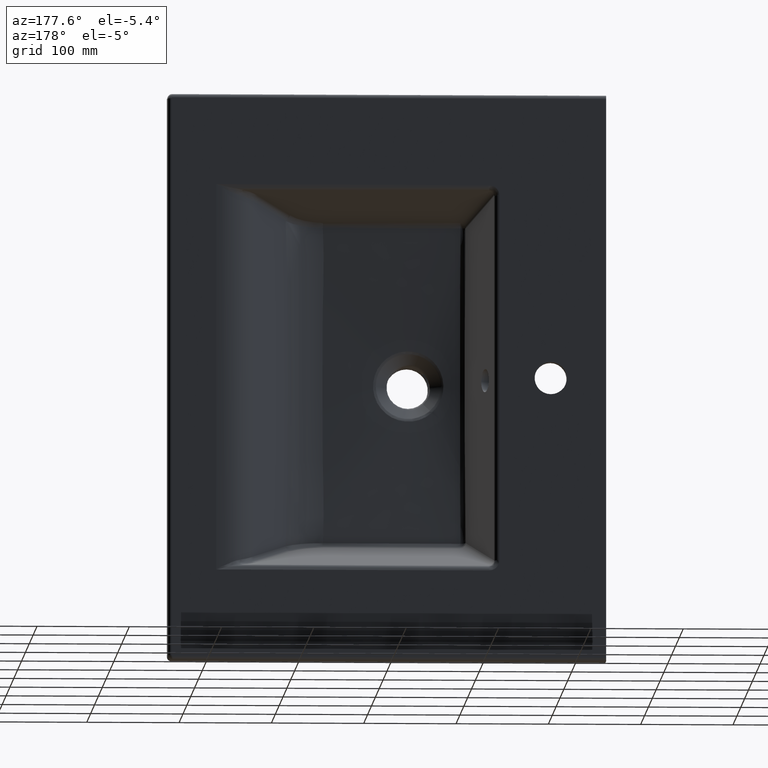
[diagram: clean part render]
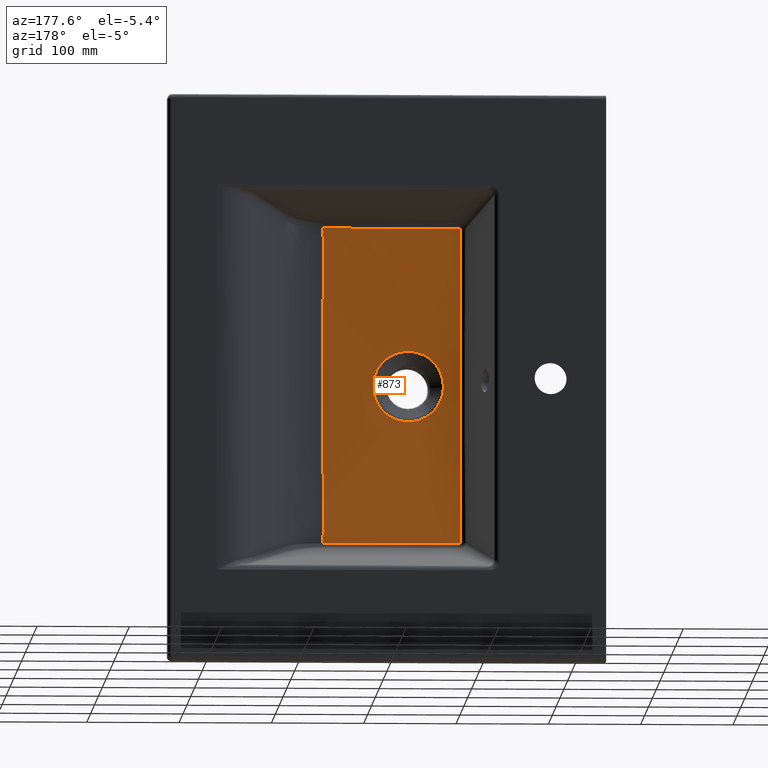
[diagram: same view with one face highlighted and labeled with its STEP entity id]
A machine part, auxiliary view. The second image highlights one B-rep face of the part: STEP entity #873.
In plain terms, the highlighted face is a freeform B-spline surface patch.
Its self-contained STEP definition (entity closure, byte-faithful):
#221=B_SPLINE_SURFACE_WITH_KNOTS('',3,1,((#8918,#8919,#8920),(#8921,#8922,
#8923),(#8924,#8925,#8926),(#8927,#8928,#8929),(#8930,#8931,#8932),(#8933,
#8934,#8935),(#8936,#8937,#8938),(#8939,#8940,#8941),(#8942,#8943,#8944),
(#8945,#8946,#8947),(#8948,#8949,#8950),(#8951,#8952,#8953),(#8954,#8955,
#8956),(#8957,#8958,#8959),(#8960,#8961,#8962),(#8963,#8964,#8965),(#8966,
#8967,#8968),(#8969,#8970,#8971),(#8972,#8973,#8974),(#8975,#8976,#8977),
(#8978,#8979,#8980),(#8981,#8982,#8983),(#8984,#8985,#8986),(#8987,#8988,
#8989),(#8990,#8991,#8992),(#8993,#8994,#8995),(#8996,#8997,#8998),(#8999,
#9000,#9001),(#9002,#9003,#9004),(#9005,#9006,#9007),(#9008,#9009,#9010),
(#9011,#9012,#9013),(#9014,#9015,#9016),(#9017,#9018,#9019),(#9020,#9021,
#9022),(#9023,#9024,#9025),(#9026,#9027,#9028),(#9029,#9030,#9031),(#9032,
#9033,#9034),(#9035,#9036,#9037),(#9038,#9039,#9040),(#9041,#9042,#9043),
(#9044,#9045,#9046),(#9047,#9048,#9049),(#9050,#9051,#9052),(#9053,#9054,
#9055),(#9056,#9057,#9058),(#9059,#9060,#9061),(#9062,#9063,#9064),(#9065,
#9066,#9067),(#9068,#9069,#9070),(#9071,#9072,#9073),(#9074,#9075,#9076),
(#9077,#9078,#9079),(#9080,#9081,#9082),(#9083,#9084,#9085),(#9086,#9087,
#9088),(#9089,#9090,#9091),(#9092,#9093,#9094),(#9095,#9096,#9097),(#9098,
#9099,#9100),(#9101,#9102,#9103),(#9104,#9105,#9106),(#9107,#9108,#9109),
(#9110,#9111,#9112),(#9113,#9114,#9115)),.UNSPECIFIED.,.T.,.F.,.F.,(1,1,
2,1,1,1,1,1,1,1,2,1,1,1,2,1,1,1,1,1,1,1,2,1,1,1,1,1,1,1,2,1,1,1,1,1,1,1,
2,1,1,1,2,1,1,1,1,1,1,1,2,1,1,1,1,1,1,1,2,1,1),(2,1,2),(-0.0636252607940619,
-0.031812630397031,0.,0.00701494371003822,0.0140298874200764,0.0210448311301147,
0.0280597748401529,0.0350747185501911,0.0420896622602294,0.0491046059702675,
0.0561195496803058,0.0894345140460906,0.122749478411875,0.15606444277766,
0.189379407143445,0.196394350853484,0.203409294563522,0.21042423827356,
0.217439181983598,0.224454125693637,0.231469069403675,0.238484013113713,
0.245498956823751,0.277311587220782,0.309124217617813,0.340936848014845,
0.372749478411876,0.404562108808906,0.436374739205938,0.468187369602969,
0.5,0.507014943710038,0.514029887420077,0.521044831130115,0.528059774840153,
0.535074718550191,0.542089662260229,0.549104605970268,0.556119549680306,
0.589434514046091,0.622749478411875,0.65606444277766,0.689379407143445,
0.696394350853483,0.703409294563522,0.71042423827356,0.717439181983598,
0.724454125693636,0.731469069403674,0.738484013113713,0.745498956823751,
0.777311587220782,0.809124217617813,0.840936848014844,0.872749478411875,
0.904562108808907,0.936374739205938,0.968187369602969,1.,1.00701494371004,
1.01402988742008),(0.,0.13017574864537,1.),.UNSPECIFIED.);
#289=FACE_BOUND('',#1506,.T.);
#290=FACE_BOUND('',#1507,.T.);
#371=B_SPLINE_CURVE_WITH_KNOTS('',3,(#8752,#8753,#8754,#8755,#8756,#8757,
#8758,#8759,#8760,#8761,#8762,#8763,#8764,#8765,#8766,#8767,#8768,#8769,
#8770,#8771,#8772,#8773,#8774,#8775,#8776,#8777,#8778,#8779,#8780,#8781,
#8782,#8783,#8784,#8785,#8786,#8787,#8788,#8789,#8790,#8791,#8792,#8793,
#8794,#8795,#8796,#8797,#8798,#8799,#8800,#8801),.UNSPECIFIED.,.T.,.F.,
(2,2,2,2,2,2,2,2,2,2,2,2,2,2,2,2,2,2,2,2,2,2,2,2,2,2,2),(-0.0624999999999998,
0.,0.0625000000000001,0.125,0.15625,0.1875,0.21875,0.25,0.3125,0.375,0.40625,
0.4375,0.46875,0.5,0.53125,0.5625,0.625,0.6875,0.71875,0.75,0.78125,0.8125,
0.875,0.90625,0.9375,1.,1.0625),.UNSPECIFIED.);
#372=B_SPLINE_CURVE_WITH_KNOTS('',3,(#8803,#8804,#8805,#8806,#8807,#8808,
#8809,#8810,#8811,#8812),.UNSPECIFIED.,.F.,.F.,(4,2,2,2,4),(0.,0.25,0.5,
0.75,1.),.UNSPECIFIED.);
#373=B_SPLINE_CURVE_WITH_KNOTS('',3,(#8815,#8816,#8817,#8818,#8819,#8820,
#8821,#8822,#8823,#8824,#8825,#8826),.UNSPECIFIED.,.F.,.F.,(4,2,2,2,2,4),
(0.,0.0625,0.125,0.25,0.5,1.),.UNSPECIFIED.);
#374=B_SPLINE_CURVE_WITH_KNOTS('',3,(#8828,#8829,#8830,#8831,#8832,#8833,
#8834,#8835),.UNSPECIFIED.,.F.,.F.,(4,2,2,4),(0.,0.25,0.5,1.),
 .UNSPECIFIED.);
#375=B_SPLINE_CURVE_WITH_KNOTS('',3,(#8837,#8838,#8839,#8840,#8841,#8842,
#8843),.UNSPECIFIED.,.F.,.F.,(4,3,4),(0.,0.999997926556544,1.),
 .UNSPECIFIED.);
#376=B_SPLINE_CURVE_WITH_KNOTS('',3,(#8845,#8846,#8847,#8848,#8849,#8850,
#8851,#8852,#8853,#8854,#8855,#8856),.UNSPECIFIED.,.F.,.F.,(4,2,2,2,2,4),
(0.,0.0624999999999999,0.125,0.25,0.5,1.),.UNSPECIFIED.);
#377=B_SPLINE_CURVE_WITH_KNOTS('',3,(#8858,#8859,#8860,#8861,#8862,#8863,
#8864,#8865,#8866,#8867,#8868,#8869,#8870,#8871),.UNSPECIFIED.,.F.,.F.,
(4,2,2,2,2,2,4),(0.,0.0312500000000002,0.0625000000000003,0.125,0.25,0.5,
1.),.UNSPECIFIED.);
#378=B_SPLINE_CURVE_WITH_KNOTS('',3,(#8873,#8874,#8875,#8876,#8877,#8878,
#8879,#8880,#8881,#8882,#8883,#8884),.UNSPECIFIED.,.F.,.F.,(4,2,2,2,2,4),
(0.,0.0624999999999998,0.125,0.25,0.5,1.),.UNSPECIFIED.);
#379=B_SPLINE_CURVE_WITH_KNOTS('',3,(#8886,#8887,#8888,#8889,#8890,#8891,
#8892,#8893,#8894,#8895),.UNSPECIFIED.,.F.,.F.,(4,3,3,4),(0.,2.07157395582158E-006,
0.69162829404363,1.),.UNSPECIFIED.);
#380=B_SPLINE_CURVE_WITH_KNOTS('',3,(#8897,#8898,#8899,#8900,#8901,#8902,
#8903,#8904),.UNSPECIFIED.,.F.,.F.,(4,2,2,4),(0.,0.5,0.75,1.),
 .UNSPECIFIED.);
#381=B_SPLINE_CURVE_WITH_KNOTS('',3,(#8906,#8907,#8908,#8909,#8910,#8911,
#8912,#8913,#8914,#8915,#8916,#8917),.UNSPECIFIED.,.F.,.F.,(4,2,2,2,2,4),
(0.,0.5,0.749999999999999,0.874999999999999,0.9375,1.),.UNSPECIFIED.);
#873=ADVANCED_FACE('',(#289,#290),#221,.F.);
#1506=EDGE_LOOP('',(#2252));
#1507=EDGE_LOOP('',(#2253,#2254,#2255,#2256,#2257,#2258,#2259,#2260,#2261,
#2262));
#2252=ORIENTED_EDGE('',*,*,#3884,.T.);
#2253=ORIENTED_EDGE('',*,*,#3885,.T.);
#2254=ORIENTED_EDGE('',*,*,#3886,.T.);
#2255=ORIENTED_EDGE('',*,*,#3887,.T.);
#2256=ORIENTED_EDGE('',*,*,#3888,.T.);
#2257=ORIENTED_EDGE('',*,*,#3889,.T.);
#2258=ORIENTED_EDGE('',*,*,#3890,.T.);
#2259=ORIENTED_EDGE('',*,*,#3891,.T.);
#2260=ORIENTED_EDGE('',*,*,#3892,.T.);
#2261=ORIENTED_EDGE('',*,*,#3893,.T.);
#2262=ORIENTED_EDGE('',*,*,#3894,.T.);
#3479=VERTEX_POINT('',#8802);
#3480=VERTEX_POINT('',#8813);
#3481=VERTEX_POINT('',#8814);
#3482=VERTEX_POINT('',#8827);
#3483=VERTEX_POINT('',#8836);
#3484=VERTEX_POINT('',#8844);
#3485=VERTEX_POINT('',#8857);
#3486=VERTEX_POINT('',#8872);
#3487=VERTEX_POINT('',#8885);
#3488=VERTEX_POINT('',#8896);
#3489=VERTEX_POINT('',#8905);
#3884=EDGE_CURVE('',#3479,#3479,#371,.T.);
#3885=EDGE_CURVE('',#3480,#3481,#372,.T.);
#3886=EDGE_CURVE('',#3481,#3482,#373,.T.);
#3887=EDGE_CURVE('',#3482,#3483,#374,.T.);
#3888=EDGE_CURVE('',#3483,#3484,#375,.T.);
#3889=EDGE_CURVE('',#3484,#3485,#376,.T.);
#3890=EDGE_CURVE('',#3485,#3486,#377,.T.);
#3891=EDGE_CURVE('',#3486,#3487,#378,.T.);
#3892=EDGE_CURVE('',#3487,#3488,#379,.T.);
#3893=EDGE_CURVE('',#3488,#3489,#380,.T.);
#3894=EDGE_CURVE('',#3489,#3480,#381,.T.);
#8752=CARTESIAN_POINT('',(-56.6958858381204,-102.881973361515,-25.1695996129777));
#8753=CARTESIAN_POINT('',(-49.194695829534,-102.91428417369,-31.9399269021677));
#8754=CARTESIAN_POINT('',(-44.8367379368619,-102.91591277727,-34.5017683643152));
#8755=CARTESIAN_POINT('',(-35.3522303705491,-102.912065759523,-37.7980395385449));
#8756=CARTESIAN_POINT('',(-30.3461231045659,-102.913190129161,-38.5037217621802));
#8757=CARTESIAN_POINT('',(-22.797331825474,-102.918327004069,-38.0804028353576));
#8758=CARTESIAN_POINT('',(-20.3331749861481,-102.920606216428,-37.6962894118619));
#8759=CARTESIAN_POINT('',(-15.5057019582928,-102.925595685607,-36.4577766480108));
#8760=CARTESIAN_POINT('',(-13.1171865893804,-102.928871246215,-35.5896587808274));
#8761=CARTESIAN_POINT('',(-8.60613792250357,-102.933347296951,-33.4242945162283));
#8762=CARTESIAN_POINT('',(-6.47967404105842,-102.933432575767,-32.1305777546506));
#8763=CARTESIAN_POINT('',(-2.48436205429988,-102.930275370242,-29.1219011305989));
#8764=CARTESIAN_POINT('',(-0.615039020902852,-102.927520034532,-27.3978918133093));
#8765=CARTESIAN_POINT('',(4.35951921472189,-102.920123132506,-21.8180748648577));
#8766=CARTESIAN_POINT('',(6.9620145378207,-102.914843537112,-17.3971152147552));
#8767=CARTESIAN_POINT('',(10.2531257180684,-102.907327553856,-7.99728582642132));
#8768=CARTESIAN_POINT('',(10.9775745258164,-102.905320007259,-2.92204601290328));
#8769=CARTESIAN_POINT('',(10.5765922633642,-102.906315196023,4.55117176428493));
#8770=CARTESIAN_POINT('',(10.1927490908363,-102.9073493487,7.06736411440542));
#8771=CARTESIAN_POINT('',(8.95962511488858,-102.910298527459,11.9080471277402));
#8772=CARTESIAN_POINT('',(8.1138550351982,-102.912285939854,14.2504659205723));
#8773=CARTESIAN_POINT('',(5.95813476543879,-102.916739879508,18.7774989696624));
#8774=CARTESIAN_POINT('',(4.64842318232641,-102.919251947435,20.946891431568));
#8775=CARTESIAN_POINT('',(1.67336416086226,-102.924204375919,24.9377144654932));
#8776=CARTESIAN_POINT('',(-0.00277794547852524,-102.926694049495,26.7842689791956));
#8777=CARTESIAN_POINT('',(-3.74887616798302,-102.931492770232,30.1665720194994));
#8778=CARTESIAN_POINT('',(-5.76607699296695,-102.93337268623,31.6521606635153));
#8779=CARTESIAN_POINT('',(-10.0667868153067,-102.932476019859,34.2066778625249));
#8780=CARTESIAN_POINT('',(-12.3740108704056,-102.929299840646,35.2808987959098));
#8781=CARTESIAN_POINT('',(-19.4374996601933,-102.92116618596,37.7644601449714));
#8782=CARTESIAN_POINT('',(-24.5089156330028,-102.916420710015,38.4900555853876));
#8783=CARTESIAN_POINT('',(-34.4573003821883,-102.912127422002,37.9677442781704));
#8784=CARTESIAN_POINT('',(-39.4342436941125,-102.915026204796,36.7162924702339));
#8785=CARTESIAN_POINT('',(-46.1841043759167,-102.916079932345,33.5069844394699));
#8786=CARTESIAN_POINT('',(-48.3593718438632,-102.913514506597,32.1922516713242));
#8787=CARTESIAN_POINT('',(-52.3600416913151,-102.901713622242,29.1826156906596));
#8788=CARTESIAN_POINT('',(-54.189940208429,-102.893179877942,27.4953649572589));
#8789=CARTESIAN_POINT('',(-57.5133090767834,-102.874235436584,23.7607400963347));
#8790=CARTESIAN_POINT('',(-59.0066761133333,-102.863121097424,21.6996144840167));
#8791=CARTESIAN_POINT('',(-61.5164534321914,-102.839387029919,17.3926307339764));
#8792=CARTESIAN_POINT('',(-62.5535622405849,-102.826594489632,15.1269007096837));
#8793=CARTESIAN_POINT('',(-65.0058120178928,-102.790639403498,7.99001140060135));
#8794=CARTESIAN_POINT('',(-65.6946752149718,-102.773279249944,2.97424488093989));
#8795=CARTESIAN_POINT('',(-65.3054485363651,-102.781246797359,-4.55853634056646));
#8796=CARTESIAN_POINT('',(-64.9407947540586,-102.789019049687,-7.02625744448887));
#8797=CARTESIAN_POINT('',(-63.7433326720975,-102.809480303455,-11.8756114068497));
#8798=CARTESIAN_POINT('',(-62.8970779307509,-102.822340690836,-14.2762613009439));
#8799=CARTESIAN_POINT('',(-59.7200980218504,-102.859425586096,-21.061249863034));
#8800=CARTESIAN_POINT('',(-56.6958858381204,-102.881973361515,-25.1695996129777));
#8801=CARTESIAN_POINT('',(-49.194695829534,-102.91428417369,-31.9399269021677));
#8802=CARTESIAN_POINT('',(-52.9452908338272,-102.898128767602,-28.5547632575726));
#8803=CARTESIAN_POINT('',(-83.3110054308589,-99.1627648993118,-88.5202248971155));
#8804=CARTESIAN_POINT('',(-83.2900419772536,-99.3561186610101,-73.7669530531405));
#8805=CARTESIAN_POINT('',(-83.2757267055237,-99.5723012893982,-59.0139666012121));
#8806=CARTESIAN_POINT('',(-83.2881064202004,-99.9548537208107,-29.5073298117981));
#8807=CARTESIAN_POINT('',(-83.3203967952468,-100.110983713064,-14.7535265789122));
#8808=CARTESIAN_POINT('',(-83.3203966112605,-100.110982832349,14.7536628339225));
#8809=CARTESIAN_POINT('',(-83.2881063375779,-99.9548528097514,29.5074068816053));
#8810=CARTESIAN_POINT('',(-83.2757267392686,-99.5723006900521,59.0140060304185));
#8811=CARTESIAN_POINT('',(-83.2900419806282,-99.3561186501332,73.7669530529933));
#8812=CARTESIAN_POINT('',(-83.3110054308589,-99.1627648993118,88.5202248971156));
#8813=CARTESIAN_POINT('',(-83.3110054308589,-99.1627648993118,-88.5202248971155));
#8814=CARTESIAN_POINT('',(-83.3110054308589,-99.1627648993118,88.5202248971156));
#8815=CARTESIAN_POINT('',(-83.3110054308589,-99.1627648993118,88.5202248971156));
#8816=CARTESIAN_POINT('',(-83.3091907717745,-99.1538884444656,90.2474989672242));
#8817=CARTESIAN_POINT('',(-83.2554851333548,-99.1152627158856,91.9735253735622));
#8818=CARTESIAN_POINT('',(-83.2254260709496,-99.0480201179993,95.4266526403856));
#8819=CARTESIAN_POINT('',(-83.2168275871621,-99.0090183655168,97.1531647112862));
#8820=CARTESIAN_POINT('',(-83.2021648417471,-98.8815014993084,102.332587945093));
#8821=CARTESIAN_POINT('',(-83.2064552794835,-98.7826808804195,105.78519894059));
#8822=CARTESIAN_POINT('',(-83.2386283763492,-98.4640353648447,116.141841565838));
#8823=CARTESIAN_POINT('',(-83.2847419814248,-98.2223348364731,123.045099106874));
#8824=CARTESIAN_POINT('',(-83.4478356217397,-97.4593313643853,143.753399975548));
#8825=CARTESIAN_POINT('',(-83.5918068437502,-96.8991478705376,157.556951722046));
#8826=CARTESIAN_POINT('',(-83.7455535551465,-96.3208638293778,171.359521830076));
#8827=CARTESIAN_POINT('',(-83.7455535551467,-96.3208638293778,171.359521830076));
#8828=CARTESIAN_POINT('',(-83.7455535551467,-96.3208638293778,171.359521830076));
#8829=CARTESIAN_POINT('',(-71.3243018160535,-96.604639458181,171.29472779117));
#8830=CARTESIAN_POINT('',(-58.900751736477,-96.5747816602515,171.312056549036));
#8831=CARTESIAN_POINT('',(-34.0542167430794,-96.5892775527199,171.310720723604));
#8832=CARTESIAN_POINT('',(-21.6309482900955,-96.594535282089,171.310179700044));
#8833=CARTESIAN_POINT('',(15.6388599524902,-96.6027926492581,171.308990161642));
#8834=CARTESIAN_POINT('',(40.4853969380625,-96.5977469720917,171.308766454259));
#8835=CARTESIAN_POINT('',(65.3319324012526,-96.5841270297268,171.309346965457));
#8836=CARTESIAN_POINT('',(65.3319324012527,-96.5841270297269,171.309346965457));
#8837=CARTESIAN_POINT('',(65.3319324012527,-96.5841270297269,171.309346965457));
#8838=CARTESIAN_POINT('',(65.0289980841975,-97.0339507395937,161.67883457981));
#8839=CARTESIAN_POINT('',(64.7324082853977,-97.4806106981276,152.04796457254));
#8840=CARTESIAN_POINT('',(64.4485123279376,-97.9197864927328,142.416380741867));
#8841=CARTESIAN_POINT('',(64.4485117392942,-97.9197874033408,142.416360771282));
#8842=CARTESIAN_POINT('',(64.4485111506509,-97.9197883139488,142.416340800696));
#8843=CARTESIAN_POINT('',(64.4485105620076,-97.9197892245568,142.41632083011));
#8844=CARTESIAN_POINT('',(64.4485105620076,-97.9197892245568,142.41632083011));
#8845=CARTESIAN_POINT('',(64.4485105620076,-97.9197892245568,142.41632083011));
#8846=CARTESIAN_POINT('',(64.4288207729066,-97.9523961644947,141.141020465124));
#8847=CARTESIAN_POINT('',(64.4791346074762,-98.0341779825784,139.86883391233));
#8848=CARTESIAN_POINT('',(64.5043748000357,-98.1440606174551,137.321118609063));
#8849=CARTESIAN_POINT('',(64.5155869145624,-98.197546142019,136.047189996671));
#8850=CARTESIAN_POINT('',(64.5473144801923,-98.3538826126038,132.225221017537));
#8851=CARTESIAN_POINT('',(64.564970042664,-98.4526217599942,129.676989741939));
#8852=CARTESIAN_POINT('',(64.6158955539122,-98.7337129382029,122.031665854554));
#8853=CARTESIAN_POINT('',(64.6498915785361,-98.9010349846495,116.934105192036));
#8854=CARTESIAN_POINT('',(64.7916964971852,-99.3407784360682,101.64017415371));
#8855=CARTESIAN_POINT('',(64.9043813553386,-99.5652397032994,91.4389684594104));
#8856=CARTESIAN_POINT('',(65.3658411735244,-99.6180824045792,81.2487584377706));
#8857=CARTESIAN_POINT('',(65.3658411735244,-99.6180824045792,81.2487584377706));
#8858=CARTESIAN_POINT('',(65.3658411735244,-99.6180824045792,81.2487584377706));
#8859=CARTESIAN_POINT('',(65.4154787234854,-99.6637101612053,79.5564301609883));
#8860=CARTESIAN_POINT('',(65.3734799994182,-99.6419411840572,77.8634236220215));
#8861=CARTESIAN_POINT('',(65.3818111477035,-99.6655319082054,74.4780891412717));
#8862=CARTESIAN_POINT('',(65.3862059222875,-99.6772276021739,72.7854219411596));
#8863=CARTESIAN_POINT('',(65.4000435946108,-99.7119120708381,67.7074196892741));
#8864=CARTESIAN_POINT('',(65.4101493768922,-99.7345018691219,64.32208403796));
#8865=CARTESIAN_POINT('',(65.4425374865264,-99.7997117951763,54.1660667196675));
#8866=CARTESIAN_POINT('',(65.4667227171801,-99.8398036516893,47.3953632297078));
#8867=CARTESIAN_POINT('',(65.5367440281407,-99.941430702814,27.0832155354537));
#8868=CARTESIAN_POINT('',(65.5762723502295,-99.9826034075423,13.5417541664702));
#8869=CARTESIAN_POINT('',(65.5762735417131,-99.9826047284378,-27.082823214942));
#8870=CARTESIAN_POINT('',(65.4250789499783,-99.8095021109223,-54.1660914410466));
#8871=CARTESIAN_POINT('',(65.3658411735244,-99.6180824045791,-81.2487584377706));
#8872=CARTESIAN_POINT('',(65.3658411735244,-99.6180824045791,-81.2487584377706));
#8873=CARTESIAN_POINT('',(65.3658411735244,-99.6180824045791,-81.2487584377706));
#8874=CARTESIAN_POINT('',(65.3435591377353,-99.6365878778769,-82.5241545322057));
#8875=CARTESIAN_POINT('',(65.2573381980214,-99.6018007039524,-83.7970452762873));
#8876=CARTESIAN_POINT('',(65.1652460052005,-99.5773548221406,-86.3455569968057));
#8877=CARTESIAN_POINT('',(65.1241571014975,-99.5625641631477,-87.6198789506266));
#8878=CARTESIAN_POINT('',(65.0131376243545,-99.5115920463531,-91.443003483612));
#8879=CARTESIAN_POINT('',(64.9540918084564,-99.4688846882231,-93.9919351892674));
#8880=CARTESIAN_POINT('',(64.8065708389655,-99.320271018447,-101.639032360923));
#8881=CARTESIAN_POINT('',(64.7444343133275,-99.1942134866365,-106.737553413729));
#8882=CARTESIAN_POINT('',(64.6026210015444,-98.7544523614444,-122.032202008254));
#8883=CARTESIAN_POINT('',(64.5814160041176,-98.3836864179989,-132.227859015499));
#8884=CARTESIAN_POINT('',(64.4485105620073,-97.9197892245568,-142.41632083011));
#8885=CARTESIAN_POINT('',(64.4485105620073,-97.9197892245568,-142.41632083011));
#8886=CARTESIAN_POINT('',(64.4485105620073,-97.9197892245568,-142.41632083011));
#8887=CARTESIAN_POINT('',(64.4485106046476,-97.9197879089882,-142.416340768679));
#8888=CARTESIAN_POINT('',(64.4485117382332,-97.9197874049829,-142.416360735271));
#8889=CARTESIAN_POINT('',(64.4485123263459,-97.9197864951958,-142.416380687852));
#8890=CARTESIAN_POINT('',(64.6448626313749,-97.6160403551921,-149.077850757062));
#8891=CARTESIAN_POINT('',(64.8473673155493,-97.3086412098315,-155.738974087425));
#8892=CARTESIAN_POINT('',(65.0537232972401,-96.9991983102509,-162.399879502124));
#8893=CARTESIAN_POINT('',(65.145730163878,-96.8612286165183,-165.369742702389));
#8894=CARTESIAN_POINT('',(65.2385158082239,-96.7228402625086,-168.339562409738));
#8895=CARTESIAN_POINT('',(65.3319324012525,-96.5841270297268,-171.309346965456));
#8896=CARTESIAN_POINT('',(65.3319324012525,-96.5841270297268,-171.309346965456));
#8897=CARTESIAN_POINT('',(65.3319324012526,-96.5841270297269,-171.309346965457));
#8898=CARTESIAN_POINT('',(40.4853969755869,-96.5977469720712,-171.30876645426));
#8899=CARTESIAN_POINT('',(15.638857332698,-96.6027926490788,-171.308990161702));
#8900=CARTESIAN_POINT('',(-21.6309492629672,-96.5945352816728,-171.310179700087));
#8901=CARTESIAN_POINT('',(-34.0542174058403,-96.5892775523907,-171.310720723636));
#8902=CARTESIAN_POINT('',(-58.9007521724066,-96.5747816599397,-171.312056549064));
#8903=CARTESIAN_POINT('',(-71.3243021726765,-96.6046394500335,-171.29472779303));
#8904=CARTESIAN_POINT('',(-83.7455535551467,-96.3208638293779,-171.359521830076));
#8905=CARTESIAN_POINT('',(-83.7455535551467,-96.3208638293779,-171.359521830076));
#8906=CARTESIAN_POINT('',(-83.7455535551467,-96.3208638293779,-171.359521830076));
#8907=CARTESIAN_POINT('',(-83.5918071917295,-96.8991465616917,-157.55698296178));
#8908=CARTESIAN_POINT('',(-83.4478386162254,-97.4593194708711,-143.753696174615));
#8909=CARTESIAN_POINT('',(-83.2847447132165,-98.2223209985142,-123.045487974042));
#8910=CARTESIAN_POINT('',(-83.2386302333304,-98.4640229698247,-116.14221901697));
#8911=CARTESIAN_POINT('',(-83.2064555567412,-98.7826751362487,-105.785398343794));
#8912=CARTESIAN_POINT('',(-83.2021648972675,-98.8814994932801,-102.33265948966));
#8913=CARTESIAN_POINT('',(-83.2168271855853,-99.0090161175314,-97.1532609864626));
#8914=CARTESIAN_POINT('',(-83.2254254431587,-99.0480180530109,-95.4267494700178));
#8915=CARTESIAN_POINT('',(-83.2554842857729,-99.1152614804091,-91.9735980331475));
#8916=CARTESIAN_POINT('',(-83.3091908231033,-99.1538886866434,-90.2474511539173));
#8917=CARTESIAN_POINT('',(-83.3110054308589,-99.1627648993118,-88.5202248971155));
#8918=CARTESIAN_POINT('',(-127.053882555959,-93.8027397631865,-159.120085158968));
#8919=CARTESIAN_POINT('',(-117.5,-95.,-141.735722125314));
#8920=CARTESIAN_POINT('',(-53.6616981024186,-103.,-25.5747572883126));
#8921=CARTESIAN_POINT('',(-127.394740143705,-93.8027397631865,-177.428050718175));
#8922=CARTESIAN_POINT('',(-117.5,-95.,-157.92488112044));
#8923=CARTESIAN_POINT('',(-51.3841141502205,-103.,-27.6062152327732));
#8924=CARTESIAN_POINT('',(-126.923734659806,-93.8027397631864,-184.240002953325));
#8925=CARTESIAN_POINT('',(-116.985376035969,-95.,-163.93947217271));
#8926=CARTESIAN_POINT('',(-50.5780348865589,-103.,-28.2929007329389));
#8927=CARTESIAN_POINT('',(-124.174382512542,-93.8027397631865,-194.649976271239));
#8928=CARTESIAN_POINT('',(-114.440177252582,-95.,-173.114224439004));
#8929=CARTESIAN_POINT('',(-49.3969730391569,-103.,-29.2140017802965));
#8930=CARTESIAN_POINT('',(-119.239765517602,-93.8027397631863,-204.717362276203));
#8931=CARTESIAN_POINT('',(-109.994887313965,-95.,-181.981121160266));
#8932=CARTESIAN_POINT('',(-48.2213285211511,-103.,-30.0593222608046));
#8933=CARTESIAN_POINT('',(-112.172031490767,-93.8027397631867,-213.824055218187));
#8934=CARTESIAN_POINT('',(-103.693176016244,-95.,-190.004117257819));
#8935=CARTESIAN_POINT('',(-47.0381216592138,-103.,-30.84114013422));
#8936=CARTESIAN_POINT('',(-103.266506095647,-93.8027397631862,-221.361341892199));
#8937=CARTESIAN_POINT('',(-95.7902351449844,-95.,-196.655337516447));
#8938=CARTESIAN_POINT('',(-45.834372780017,-103.,-31.5717333602993));
#8939=CARTESIAN_POINT('',(-93.043307466135,-93.8027397631867,-226.856301622935));
#8940=CARTESIAN_POINT('',(-86.7366447474075,-95.,-201.524423285883));
#8941=CARTESIAN_POINT('',(-44.5960138315247,-103.,-32.2587778855248));
#8942=CARTESIAN_POINT('',(-82.1505202200255,-93.8027397631865,-230.067103357224));
#8943=CARTESIAN_POINT('',(-77.0942932217963,-95.,-204.402023273426));
#8944=CARTESIAN_POINT('',(-43.3089767617005,-103.,-32.909949656379));
#8945=CARTESIAN_POINT('',(-74.8764097964421,-93.8027397631865,-230.692717112679));
#8946=CARTESIAN_POINT('',(-70.6490399278132,-95.,-205.));
#8947=CARTESIAN_POINT('',(-42.4020824918586,-103.,-33.3232579004878));
#8948=CARTESIAN_POINT('',(-54.4668804900225,-93.8027397631865,-230.518718125122));
#8949=CARTESIAN_POINT('',(-52.5447618682934,-95.,-205.));
#8950=CARTESIAN_POINT('',(-39.701314386267,-103.,-34.4859056337486));
#8951=CARTESIAN_POINT('',(-21.2218815656426,-93.8027397631865,-230.294481514429));
#8952=CARTESIAN_POINT('',(-23.0136852315251,-95.,-205.));
#8953=CARTESIAN_POINT('',(-34.9863782904802,-103.,-35.984237266579));
#8954=CARTESIAN_POINT('',(27.9709758032813,-93.8027397631865,-230.178652522596));
#8955=CARTESIAN_POINT('',(20.75,-95.,-205.));
#8956=CARTESIAN_POINT('',(-27.5,-103.,-36.7581976021619));
#8957=CARTESIAN_POINT('',(77.1638331722055,-93.8027397631865,-230.294481514429));
#8958=CARTESIAN_POINT('',(64.5136852315252,-95.,-205.));
#8959=CARTESIAN_POINT('',(-20.0136217095199,-103.,-35.984237266579));
#8960=CARTESIAN_POINT('',(110.408832096585,-93.8027397631865,-230.518718125122));
#8961=CARTESIAN_POINT('',(94.0447618682934,-95.,-205.));
#8962=CARTESIAN_POINT('',(-15.2986856137332,-103.,-34.4859056337486));
#8963=CARTESIAN_POINT('',(130.818361403005,-93.8027397631865,-230.692717112679));
#8964=CARTESIAN_POINT('',(112.149039927813,-95.,-205.));
#8965=CARTESIAN_POINT('',(-12.5979175081415,-103.,-33.3232579004878));
#8966=CARTESIAN_POINT('',(138.092471826588,-93.8027397631865,-230.067103357223));
#8967=CARTESIAN_POINT('',(118.594293221796,-95.,-204.402023273426));
#8968=CARTESIAN_POINT('',(-11.6910232382997,-103.,-32.909949656379));
#8969=CARTESIAN_POINT('',(148.985259072698,-93.8027397631866,-226.856301622937));
#8970=CARTESIAN_POINT('',(128.236644747407,-95.,-201.524423285884));
#8971=CARTESIAN_POINT('',(-10.4039861684755,-103.,-32.2587778855248));
#8972=CARTESIAN_POINT('',(159.20845770221,-93.8027397631863,-221.361341892197));
#8973=CARTESIAN_POINT('',(137.290235144984,-95.,-196.655337516446));
#8974=CARTESIAN_POINT('',(-9.16562721998315,-103.,-31.5717333602992));
#8975=CARTESIAN_POINT('',(168.11398309733,-93.8027397631867,-213.824055218188));
#8976=CARTESIAN_POINT('',(145.193176016244,-95.,-190.004117257821));
#8977=CARTESIAN_POINT('',(-7.9618783407864,-103.,-30.8411401342199));
#8978=CARTESIAN_POINT('',(175.181717124164,-93.8027397631866,-204.717362276202));
#8979=CARTESIAN_POINT('',(151.494887313964,-95.,-181.981121160264));
#8980=CARTESIAN_POINT('',(-6.77867147884902,-103.,-30.0593222608045));
#8981=CARTESIAN_POINT('',(180.116334119105,-93.8027397631865,-194.64997627124));
#8982=CARTESIAN_POINT('',(155.940177252583,-95.,-173.114224439005));
#8983=CARTESIAN_POINT('',(-5.60302696084323,-103.,-29.2140017802964));
#8984=CARTESIAN_POINT('',(182.865686266368,-93.8027397631866,-184.240002953325));
#8985=CARTESIAN_POINT('',(158.485376035969,-95.,-163.93947217271));
#8986=CARTESIAN_POINT('',(-4.42196511344126,-103.,-28.2929007329389));
#8987=CARTESIAN_POINT('',(183.336691750268,-93.8027397631865,-177.428050718175));
#8988=CARTESIAN_POINT('',(159.,-95.,-157.92488112044));
#8989=CARTESIAN_POINT('',(-3.61588584977969,-103.,-27.6062152327731));
#8990=CARTESIAN_POINT('',(182.995834162522,-93.8027397631865,-159.120085158968));
#8991=CARTESIAN_POINT('',(159.,-95.,-141.735722125314));
#8992=CARTESIAN_POINT('',(-1.33830189758157,-103.,-25.5747572883126));
#8993=CARTESIAN_POINT('',(182.483657155719,-93.8027397631865,-129.493001342167));
#8994=CARTESIAN_POINT('',(159.,-95.,-115.477974785268));
#8995=CARTESIAN_POINT('',(2.08402511907751,-103.,-21.8306548395225));
#8996=CARTESIAN_POINT('',(181.898475210888,-93.8027397631866,-85.8846847631726));
#8997=CARTESIAN_POINT('',(159.,-95.,-76.6804726895578));
#8998=CARTESIAN_POINT('',(5.99416546676967,-103.,-15.1786418220307));
#8999=CARTESIAN_POINT('',(181.531861933477,-93.8027397631864,-42.8081188415157));
#9000=CARTESIAN_POINT('',(159.,-95.,-38.2487831945926));
#9001=CARTESIAN_POINT('',(8.44384693877003,-103.,-7.78365618723272));
#9002=CARTESIAN_POINT('',(181.406978990625,-93.8027397631864,2.02596393434094E-013));
#9003=CARTESIAN_POINT('',(159.,-95.,1.75207071073657E-013));
#9004=CARTESIAN_POINT('',(9.27830507251287,-103.,-7.80625564189563E-015));
#9005=CARTESIAN_POINT('',(181.531861933477,-93.8027397631865,42.808118841516));
#9006=CARTESIAN_POINT('',(159.,-95.,38.2487831945928));
#9007=CARTESIAN_POINT('',(8.44384693877006,-103.,7.78365618723275));
#9008=CARTESIAN_POINT('',(181.898475210888,-93.8027397631865,85.8846847631728));
#9009=CARTESIAN_POINT('',(159.,-95.,76.6804726895579));
#9010=CARTESIAN_POINT('',(5.99416546676963,-103.,15.1786418220306));
#9011=CARTESIAN_POINT('',(182.483657155719,-93.8027397631866,129.493001342167));
#9012=CARTESIAN_POINT('',(159.,-95.,115.477974785268));
#9013=CARTESIAN_POINT('',(2.08402511907752,-103.,21.8306548395225));
#9014=CARTESIAN_POINT('',(182.995834162522,-93.8027397631865,159.120085158968));
#9015=CARTESIAN_POINT('',(159.,-95.,141.735722125314));
#9016=CARTESIAN_POINT('',(-1.33830189758158,-103.,25.5747572883126));
#9017=CARTESIAN_POINT('',(183.336691750268,-93.8027397631865,177.428050718175));
#9018=CARTESIAN_POINT('',(159.,-95.,157.92488112044));
#9019=CARTESIAN_POINT('',(-3.6158858497797,-103.,27.6062152327732));
#9020=CARTESIAN_POINT('',(182.865686266369,-93.8027397631866,184.240002953326));
#9021=CARTESIAN_POINT('',(158.485376035969,-95.,163.939472172711));
#9022=CARTESIAN_POINT('',(-4.42196511344127,-103.,28.2929007329389));
#9023=CARTESIAN_POINT('',(180.116334119104,-93.8027397631863,194.649976271239));
#9024=CARTESIAN_POINT('',(155.940177252582,-95.,173.114224439004));
#9025=CARTESIAN_POINT('',(-5.60302696084324,-103.,29.2140017802965));
#9026=CARTESIAN_POINT('',(175.181717124164,-93.8027397631868,204.717362276202));
#9027=CARTESIAN_POINT('',(151.494887313965,-95.,181.981121160265));
#9028=CARTESIAN_POINT('',(-6.77867147884903,-103.,30.0593222608045));
#9029=CARTESIAN_POINT('',(168.11398309733,-93.8027397631862,213.824055218188));
#9030=CARTESIAN_POINT('',(145.193176016244,-95.,190.00411725782));
#9031=CARTESIAN_POINT('',(-7.96187834078642,-103.,30.8411401342199));
#9032=CARTESIAN_POINT('',(159.20845770221,-93.8027397631868,221.361341892198));
#9033=CARTESIAN_POINT('',(137.290235144984,-95.,196.655337516447));
#9034=CARTESIAN_POINT('',(-9.16562721998316,-103.,31.5717333602992));
#9035=CARTESIAN_POINT('',(148.985259072697,-93.8027397631862,226.856301622935));
#9036=CARTESIAN_POINT('',(128.236644747407,-95.,201.524423285883));
#9037=CARTESIAN_POINT('',(-10.4039861684755,-103.,32.2587778855249));
#9038=CARTESIAN_POINT('',(138.092471826588,-93.8027397631867,230.067103357224));
#9039=CARTESIAN_POINT('',(118.594293221796,-95.,204.402023273426));
#9040=CARTESIAN_POINT('',(-11.6910232382997,-103.,32.909949656379));
#9041=CARTESIAN_POINT('',(130.818361403005,-93.8027397631865,230.692717112679));
#9042=CARTESIAN_POINT('',(112.149039927813,-95.,205.));
#9043=CARTESIAN_POINT('',(-12.5979175081415,-103.,33.3232579004878));
#9044=CARTESIAN_POINT('',(110.408832096585,-93.8027397631865,230.518718125122));
#9045=CARTESIAN_POINT('',(94.0447618682934,-95.,205.));
#9046=CARTESIAN_POINT('',(-15.2986856137332,-103.,34.4859056337486));
#9047=CARTESIAN_POINT('',(77.1638331722054,-93.8027397631865,230.294481514429));
#9048=CARTESIAN_POINT('',(64.5136852315251,-95.,205.));
#9049=CARTESIAN_POINT('',(-20.01362170952,-103.,35.984237266579));
#9050=CARTESIAN_POINT('',(27.9709758032813,-93.8027397631865,230.178652522596));
#9051=CARTESIAN_POINT('',(20.75,-95.,205.));
#9052=CARTESIAN_POINT('',(-27.5,-103.,36.7581976021619));
#9053=CARTESIAN_POINT('',(-21.2218815656427,-93.8027397631865,230.294481514429));
#9054=CARTESIAN_POINT('',(-23.0136852315252,-95.,205.));
#9055=CARTESIAN_POINT('',(-34.9863782904802,-103.,35.984237266579));
#9056=CARTESIAN_POINT('',(-54.4668804900225,-93.8027397631865,230.518718125122));
#9057=CARTESIAN_POINT('',(-52.5447618682935,-95.,205.));
#9058=CARTESIAN_POINT('',(-39.701314386267,-103.,34.4859056337486));
#9059=CARTESIAN_POINT('',(-74.8764097964421,-93.8027397631865,230.692717112679));
#9060=CARTESIAN_POINT('',(-70.6490399278132,-95.,205.));
#9061=CARTESIAN_POINT('',(-42.4020824918587,-103.,33.3232579004878));
#9062=CARTESIAN_POINT('',(-82.1505202200256,-93.8027397631865,230.067103357223));
#9063=CARTESIAN_POINT('',(-77.0942932217965,-95.,204.402023273426));
#9064=CARTESIAN_POINT('',(-43.3089767617005,-103.,32.909949656379));
#9065=CARTESIAN_POINT('',(-93.0433074661349,-93.8027397631866,226.856301622936));
#9066=CARTESIAN_POINT('',(-86.7366447474074,-95.,201.524423285884));
#9067=CARTESIAN_POINT('',(-44.5960138315247,-103.,32.2587778855248));
#9068=CARTESIAN_POINT('',(-103.266506095647,-93.8027397631863,221.361341892197));
#9069=CARTESIAN_POINT('',(-95.7902351449844,-95.,196.655337516446));
#9070=CARTESIAN_POINT('',(-45.834372780017,-103.,31.5717333602992));
#9071=CARTESIAN_POINT('',(-112.172031490767,-93.8027397631867,213.824055218189));
#9072=CARTESIAN_POINT('',(-103.693176016244,-95.,190.004117257821));
#9073=CARTESIAN_POINT('',(-47.0381216592138,-103.,30.8411401342199));
#9074=CARTESIAN_POINT('',(-119.239765517602,-93.8027397631866,204.717362276201));
#9075=CARTESIAN_POINT('',(-109.994887313965,-95.,181.981121160263));
#9076=CARTESIAN_POINT('',(-48.2213285211511,-103.,30.0593222608045));
#9077=CARTESIAN_POINT('',(-124.174382512542,-93.8027397631864,194.649976271241));
#9078=CARTESIAN_POINT('',(-114.440177252583,-95.,173.114224439006));
#9079=CARTESIAN_POINT('',(-49.3969730391569,-103.,29.2140017802964));
#9080=CARTESIAN_POINT('',(-126.923734659806,-93.8027397631865,184.240002953325));
#9081=CARTESIAN_POINT('',(-116.985376035969,-95.,163.93947217271));
#9082=CARTESIAN_POINT('',(-50.5780348865589,-103.,28.2929007329389));
#9083=CARTESIAN_POINT('',(-127.394740143705,-93.8027397631865,177.428050718175));
#9084=CARTESIAN_POINT('',(-117.5,-95.,157.92488112044));
#9085=CARTESIAN_POINT('',(-51.3841141502205,-103.,27.6062152327731));
#9086=CARTESIAN_POINT('',(-127.053882555959,-93.8027397631865,159.120085158968));
#9087=CARTESIAN_POINT('',(-117.5,-95.,141.735722125314));
#9088=CARTESIAN_POINT('',(-53.6616981024186,-103.,25.5747572883126));
#9089=CARTESIAN_POINT('',(-126.541705549156,-93.8027397631865,129.493001342167));
#9090=CARTESIAN_POINT('',(-117.5,-95.,115.477974785268));
#9091=CARTESIAN_POINT('',(-57.0840251190776,-103.,21.8306548395224));
#9092=CARTESIAN_POINT('',(-125.956523604325,-93.8027397631865,85.8846847631728));
#9093=CARTESIAN_POINT('',(-117.5,-95.,76.680472689558));
#9094=CARTESIAN_POINT('',(-60.9941654667699,-103.,15.1786418220307));
#9095=CARTESIAN_POINT('',(-125.589910326914,-93.8027397631865,42.8081188415159));
#9096=CARTESIAN_POINT('',(-117.5,-95.,38.2487831945928));
#9097=CARTESIAN_POINT('',(-63.4438469387701,-103.,7.78365618723268));
#9098=CARTESIAN_POINT('',(-125.465027384062,-93.8027397631865,2.78381531493493E-014));
#9099=CARTESIAN_POINT('',(-117.5,-95.,2.60208521396521E-014));
#9100=CARTESIAN_POINT('',(-64.278305072513,-103.,1.38777878078145E-014));
#9101=CARTESIAN_POINT('',(-125.589910326914,-93.8027397631865,-42.8081188415158));
#9102=CARTESIAN_POINT('',(-117.5,-95.,-38.2487831945927));
#9103=CARTESIAN_POINT('',(-63.4438469387702,-103.,-7.78365618723277));
#9104=CARTESIAN_POINT('',(-125.956523604325,-93.8027397631865,-85.8846847631727));
#9105=CARTESIAN_POINT('',(-117.5,-95.,-76.6804726895578));
#9106=CARTESIAN_POINT('',(-60.9941654667698,-103.,-15.1786418220307));
#9107=CARTESIAN_POINT('',(-126.541705549156,-93.8027397631865,-129.493001342167));
#9108=CARTESIAN_POINT('',(-117.5,-95.,-115.477974785268));
#9109=CARTESIAN_POINT('',(-57.0840251190776,-103.,-21.8306548395225));
#9110=CARTESIAN_POINT('',(-127.053882555959,-93.8027397631865,-159.120085158968));
#9111=CARTESIAN_POINT('',(-117.5,-95.,-141.735722125314));
#9112=CARTESIAN_POINT('',(-53.6616981024186,-103.,-25.5747572883126));
#9113=CARTESIAN_POINT('',(-127.394740143705,-93.8027397631865,-177.428050718175));
#9114=CARTESIAN_POINT('',(-117.5,-95.,-157.92488112044));
#9115=CARTESIAN_POINT('',(-51.3841141502205,-103.,-27.6062152327732));